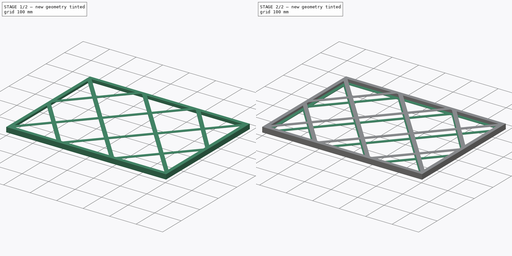
[diagram: build sequence overview — one tinted view per stage of 2, left to right]
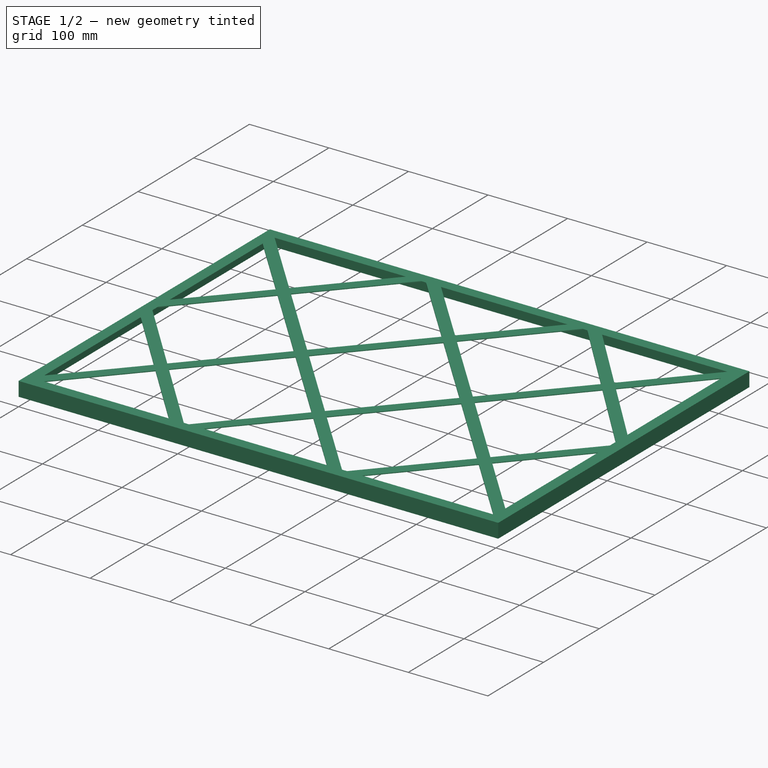
[diagram: stage 1 of 2 — iso view after this stage's code; geometry added in this stage tinted green]
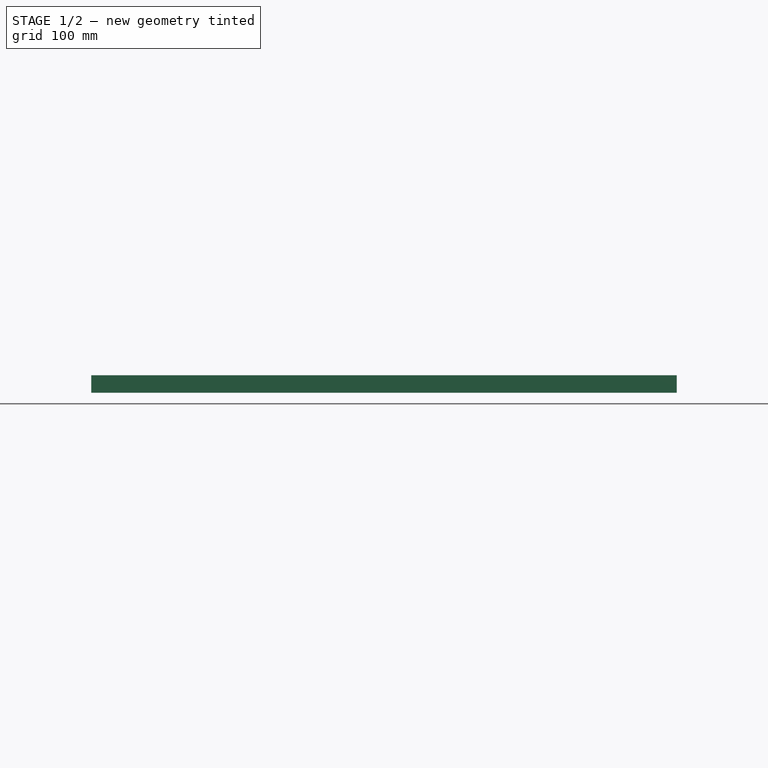
[diagram: stage 1 of 2 — front view after this stage's code; geometry added in this stage tinted green]
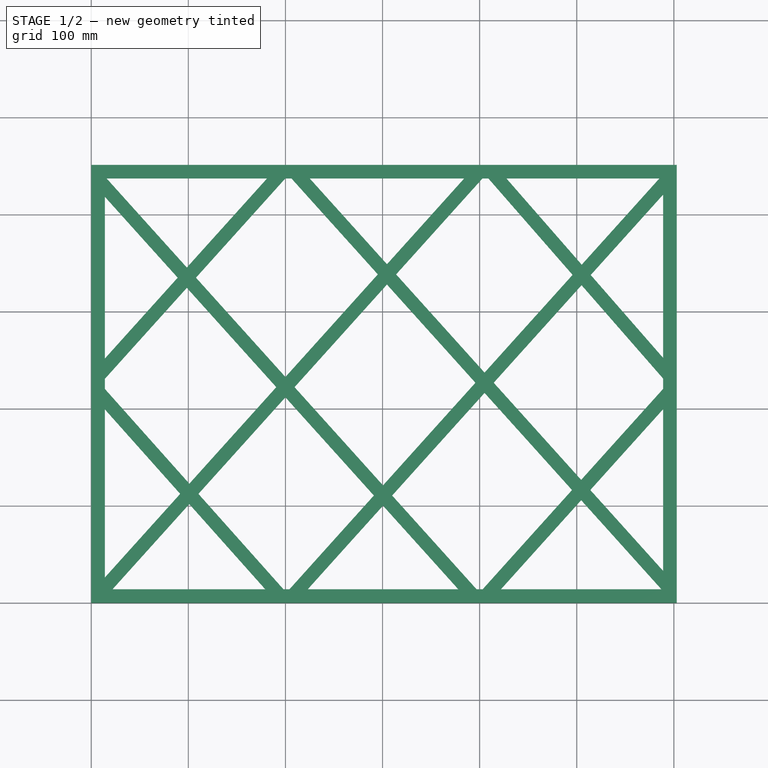
[diagram: stage 1 of 2 — top view after this stage's code; geometry added in this stage tinted green]
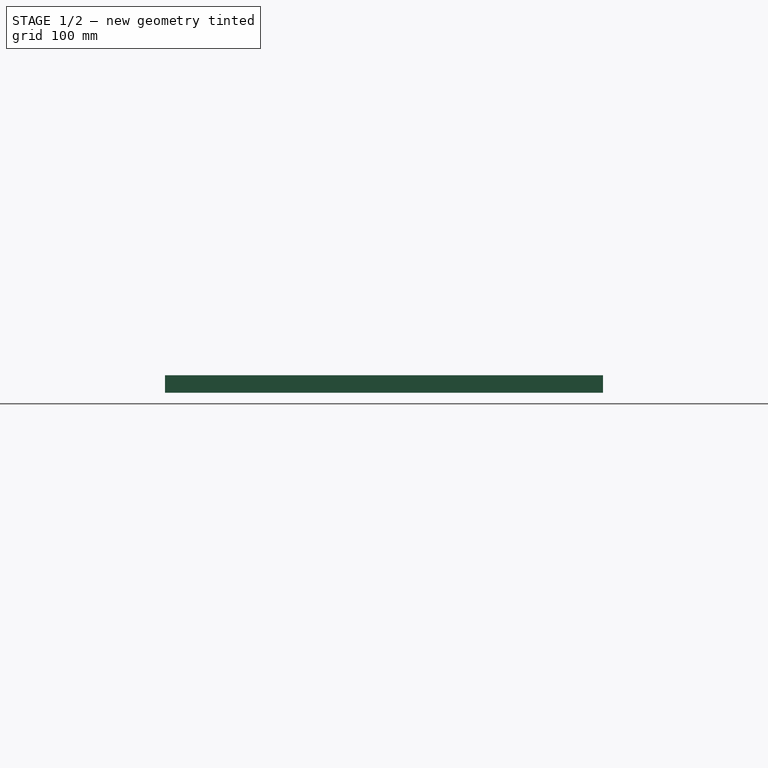
[diagram: stage 1 of 2 — right view after this stage's code; geometry added in this stage tinted green]
FCSTD DOCUMENT  (FreeCAD 1.0R39109 (Git))
Label: merv-13-filter-18-24in
License: All rights reserved
LicenseURL: https://en.wikipedia.org/wiki/All_rights_reserved
objects: Sketcher::SketchObject×2, PartDesign::Pad×2, PartDesign::LinearPattern×1, PartDesign::Body×1
note: 13 computed .brp shape members not serialized (recipe doc carries the construction recipe); baked Part::Feature solids carry a one-line shape summary decoded from their .brp

FEATURE [Sketcher::SketchObject] Sketch
  ArcFitTolerance = 1e-06
  AttachmentSupport = -> [XY_Plane]
  FullyConstrained = true
  MakeInternals = false
  MapMode = 5
  sketch-geometry (8):
    g0: LineSegment StartX=0 StartY=0 StartZ=0 EndX=603 EndY=0 EndZ=0
    g1: LineSegment StartX=603 StartY=0 StartZ=0 EndX=603 EndY=451 EndZ=0
    g2: LineSegment StartX=603 StartY=451 StartZ=0 EndX=0 EndY=451 EndZ=0
    g3: LineSegment StartX=0 StartY=451 StartZ=0 EndX=0 EndY=0 EndZ=0
    g4: LineSegment StartX=602 StartY=450 StartZ=0 EndX=1 EndY=450 EndZ=0
    g5: LineSegment StartX=1 StartY=450 StartZ=0 EndX=1 EndY=1 EndZ=0
    g6: LineSegment StartX=1 StartY=1 StartZ=0 EndX=602 EndY=1 EndZ=0
    g7: LineSegment StartX=602 StartY=1 StartZ=0 EndX=602 EndY=450 EndZ=0
  constraints (23):
    c: Coincident(g0,g1)
    c: Coincident(g1,g2)
    c: Coincident(g2,g3)
    c: Coincident(g3,g0)
    c: Horizontal(g0)
    c: Horizontal(g2)
    c: Vertical(g1)
    c: Vertical(g3)
    c: Distance(g1,g3) = 603
    c: Distance(g0,g2) = 451
    c: Coincident(g0,g-1)
    c: Coincident(g4,g5)
    c: Coincident(g5,g6)
    c: Coincident(g6,g7)
    c: Coincident(g7,g4)
    c: Horizontal(g4)
    c: Horizontal(g6)
    c: Vertical(g5)
    c: Vertical(g7)
    c: Distance(g3,g5) = 1
    c: Distance(g2,g4) = 1
    c: Distance(g1,g7) = 1
    c: Distance(g0,g6) = 1
FEATURE [PartDesign::Pad] Pad
  Direction = (0,0,1)
  Length = 17
  Length2 = 10
  Profile = -> Sketch
  ReferenceAxis = -> Sketch [N_Axis]
  Refine = true
  Suppressed = false
  Type = 0
FEATURE [Sketcher::SketchObject] Sketch001
  ArcFitTolerance = 1e-06
  AttachmentSupport = -> [Pad]
  FullyConstrained = false
  MakeInternals = false
  MapMode = 5
  Placement = pos=(0,0,17) rot=(0,0,1;0rad)
  sketch-geometry (68):
    g0: LineSegment StartX=0 StartY=0 StartZ=0 EndX=603 EndY=0 EndZ=0
    g1: LineSegment StartX=603 StartY=0 StartZ=0 EndX=603 EndY=451 EndZ=0
    g2: LineSegment StartX=603 StartY=451 StartZ=0 EndX=0 EndY=451 EndZ=0
    g3: LineSegment StartX=0 StartY=451 StartZ=0 EndX=0 EndY=0 EndZ=0
    g4: LineSegment StartX=22.0251 StartY=14 StartZ=0 EndX=179.144 EndY=14 EndZ=0
    g5: LineSegment StartX=589 StartY=32.8106 StartZ=0 EndX=589 EndY=199.49 EndZ=0
    g6: LineSegment StartX=585.057 StartY=437 StartZ=0 EndX=427.601 EndY=437 EndZ=0
    g7: LineSegment StartX=14 StartY=418.189 StartZ=0 EndX=14 EndY=251.51 EndZ=0
    g8: LineSegment StartX=15.9012 StartY=437 StartZ=0 EndX=98.4587 EndY=345.311 EndZ=0
    g9: LineSegment StartX=14 StartY=418.189 StartZ=0 EndX=89.0392 EndY=334.849 EndZ=0
    g10: LineSegment StartX=225.066 StartY=437 StartZ=0 EndX=304.562 EndY=348.711 EndZ=0
    g11: LineSegment StartX=199.855 StartY=437 StartZ=0 EndX=107.878 EndY=334.849 EndZ=0
    g12: LineSegment StartX=206.227 StartY=437 StartZ=0 EndX=295.142 EndY=338.25 EndZ=0
    g13: LineSegment StartX=181.016 StartY=437 StartZ=0 EndX=98.4587 EndY=345.311 EndZ=0
    g14: LineSegment StartX=427.601 StartY=437 StartZ=0 EndX=505.124 EndY=348.225 EndZ=0
    g15: LineSegment StartX=409.014 StartY=437 StartZ=0 EndX=495.688 EndY=337.746 EndZ=0
    g16: LineSegment StartX=384.057 StartY=437 StartZ=0 EndX=304.562 EndY=348.711 EndZ=0
    g17: LineSegment StartX=585.057 StartY=437 StartZ=0 EndX=505.124 EndY=348.225 EndZ=0
    g18: LineSegment StartX=589 StartY=220.413 StartZ=0 EndX=504.541 EndY=126.612 EndZ=0
    g19: LineSegment StartX=421.984 StartY=14 StartZ=0 EndX=504.541 EndY=105.689 EndZ=0
    g20: LineSegment StartX=223.025 StartY=14 StartZ=0 EndX=300.479 EndY=100.022 EndZ=0
    g21: LineSegment StartX=22.0251 StartY=14 StartZ=0 EndX=100.981 EndY=101.69 EndZ=0
    g22: LineSegment StartX=197.898 StartY=14 StartZ=0 EndX=204.186 EndY=14 EndZ=0
    g23: LineSegment StartX=223.025 StartY=14 StartZ=0 EndX=377.934 EndY=14 EndZ=0
    g24: LineSegment StartX=396.772 StartY=14 StartZ=0 EndX=403.145 EndY=14 EndZ=0
    g25: LineSegment StartX=421.984 StartY=14 StartZ=0 EndX=587.098 EndY=14 EndZ=0
    g26: LineSegment StartX=409.014 StartY=437 StartZ=0 EndX=402.896 EndY=437 EndZ=0
    g27: LineSegment StartX=384.057 StartY=437 StartZ=0 EndX=225.066 EndY=437 EndZ=0
    g28: LineSegment StartX=181.016 StartY=437 StartZ=0 EndX=15.9012 EndY=437 EndZ=0
    g29: LineSegment StartX=206.227 StartY=437 StartZ=0 EndX=199.855 EndY=437 EndZ=0
    g30: LineSegment StartX=14 StartY=220.314 StartZ=0 EndX=101.034 EndY=122.671 EndZ=0
    g31: LineSegment StartX=14 StartY=199.273 StartZ=0 EndX=91.6095 EndY=112.204 EndZ=0
    g32: LineSegment StartX=14 StartY=199.273 StartZ=0 EndX=14 EndY=26.0099 EndZ=0
    g33: LineSegment StartX=14 StartY=230.587 StartZ=0 EndX=14 EndY=220.314 EndZ=0
    g34: LineSegment StartX=89.0392 StartY=334.849 StartZ=0 EndX=14 EndY=251.51 EndZ=0
    g35: LineSegment StartX=98.4587 StartY=324.388 StartZ=0 EndX=190.56 EndY=222.099 EndZ=0
    g36: LineSegment StartX=98.4587 StartY=324.388 StartZ=0 EndX=14 EndY=230.587 EndZ=0
    g37: LineSegment StartX=107.878 StartY=334.849 StartZ=0 EndX=199.979 EndY=232.561 EndZ=0
    g38: LineSegment StartX=295.142 StartY=338.25 StartZ=0 EndX=199.979 EndY=232.561 EndZ=0
    g39: LineSegment StartX=304.562 StartY=327.789 StartZ=0 EndX=395.642 EndY=226.633 EndZ=0
    g40: LineSegment StartX=313.981 StartY=338.25 StartZ=0 EndX=402.896 EndY=437 EndZ=0
    g41: LineSegment StartX=313.981 StartY=338.25 StartZ=0 EndX=405.062 EndY=237.095 EndZ=0
    g42: LineSegment StartX=395.642 StartY=226.633 StartZ=0 EndX=300.479 EndY=120.944 EndZ=0
    g43: LineSegment StartX=405.062 StartY=216.172 StartZ=0 EndX=495.122 EndY=116.15 EndZ=0
    g44: LineSegment StartX=414.481 StartY=226.633 StartZ=0 EndX=504.963 EndY=327.124 EndZ=0
    g45: LineSegment StartX=414.481 StartY=226.633 StartZ=0 EndX=504.541 EndY=126.612 EndZ=0
    g46: LineSegment StartX=504.541 StartY=105.689 StartZ=0 EndX=587.098 EndY=14 EndZ=0
    g47: LineSegment StartX=495.122 StartY=116.15 StartZ=0 EndX=403.145 EndY=14 EndZ=0
    g48: LineSegment StartX=513.96 StartY=116.15 StartZ=0 EndX=589 EndY=32.8106 EndZ=0
    g49: LineSegment StartX=513.96 StartY=116.15 StartZ=0 EndX=589 EndY=199.49 EndZ=0
    g50: LineSegment StartX=495.688 StartY=337.746 StartZ=0 EndX=405.062 EndY=237.095 EndZ=0
    g51: LineSegment StartX=504.963 StartY=327.124 StartZ=0 EndX=589 EndY=230.89 EndZ=0
    g52: LineSegment StartX=514.399 StartY=337.603 StartZ=0 EndX=589 EndY=252.174 EndZ=0
    g53: LineSegment StartX=514.399 StartY=337.603 StartZ=0 EndX=589 EndY=420.456 EndZ=0
    g54: LineSegment StartX=91.6095 StartY=112.204 StartZ=0 EndX=14 EndY=26.0099 EndZ=0
    g55: LineSegment StartX=100.981 StartY=101.69 StartZ=0 EndX=179.144 EndY=14 EndZ=0
    g56: LineSegment StartX=110.406 StartY=112.157 StartZ=0 EndX=199.979 EndY=211.638 EndZ=0
    g57: LineSegment StartX=110.406 StartY=112.157 StartZ=0 EndX=197.898 EndY=14 EndZ=0
    g58: LineSegment StartX=190.56 StartY=222.099 StartZ=0 EndX=101.034 EndY=122.671 EndZ=0
    g59: LineSegment StartX=209.399 StartY=222.099 StartZ=0 EndX=304.562 EndY=327.789 EndZ=0
    g60: LineSegment StartX=209.399 StartY=222.099 StartZ=0 EndX=300.479 EndY=120.944 EndZ=0
    g61: LineSegment StartX=199.979 StartY=211.638 StartZ=0 EndX=291.06 EndY=110.483 EndZ=0
    g62: LineSegment StartX=300.479 StartY=100.022 StartZ=0 EndX=377.934 EndY=14 EndZ=0
    g63: LineSegment StartX=291.06 StartY=110.483 StartZ=0 EndX=204.186 EndY=14 EndZ=0
    g64: LineSegment StartX=309.899 StartY=110.483 StartZ=0 EndX=396.772 EndY=14 EndZ=0
    g65: LineSegment StartX=309.899 StartY=110.483 StartZ=0 EndX=405.062 EndY=216.172 EndZ=0
    g66: LineSegment StartX=589 StartY=220.413 StartZ=0 EndX=589 EndY=230.89 EndZ=0
    g67: LineSegment StartX=589 StartY=252.174 StartZ=0 EndX=589 EndY=420.456 EndZ=0
  constraints (106):
    c: Coincident(g0,g1)
    c: Coincident(g1,g2)
    c: Coincident(g2,g3)
    c: Coincident(g3,g0)
    c: Horizontal(g0)
    c: Horizontal(g2)
    c: Vertical(g1)
    c: Vertical(g3)
    c: Distance(g1,g3) = 603
    c: Distance(g0,g2) = 451
    c: Horizontal(g4)
    c: Horizontal(g6)
    c: Vertical(g5)
    c: Vertical(g7)
    c: Distance(g2,g6) = 14
    c: Distance(g1,g5) = 14
    c: Distance(g0,g4) = 14
    c: Distance(g-1,g7) = 14
    c: PointOnObject(g13,g28)
    c: PointOnObject(g12,g29)
    c: PointOnObject(g15,g26)
    c: PointOnObject(g16,g27)
    c: PointOnObject(g18,g66)
    c: PointOnObject(g52,g67)
    c: PointOnObject(g19,g25)
    c: PointOnObject(g64,g24)
    c: PointOnObject(g57,g22)
    c: Coincident(g32,g54)
    c: Coincident(g4,g21)
    c: Coincident(g4,g55)
    c: PointOnObject(g22,g57)
    c: Coincident(g22,g63)
    c: Coincident(g23,g20)
    c: Coincident(g23,g62)
    c: PointOnObject(g24,g64)
    c: PointOnObject(g25,g19)
    c: Coincident(g24,g47)
    c: Coincident(g25,g46)
    c: Coincident(g5,g48)
    c: Block(g19)
    c: Block(g14)
    c: Block(g15)
    c: Coincident(g67,g53)
    c: Coincident(g6,g17)
    c: PointOnObject(g26,g15)
    c: Coincident(g6,g14)
    c: PointOnObject(g27,g16)
    c: Coincident(g26,g40)
    c: PointOnObject(g28,g13)
    c: Coincident(g29,g11)
    c: PointOnObject(g29,g12)
    c: Coincident(g27,g10)
    c: Coincident(g7,g9)
    c: Coincident(g28,g8)
    c: PointOnObject(g36,g33)
    c: Coincident(g33,g30)
    c: Coincident(g32,g31)
    c: Coincident(g7,g34)
    c: PointOnObject(g33,g36)
    c: Coincident(g9,g34)
    c: PointOnObject(g35,g36)
    c: PointOnObject(g36,g35)
    c: PointOnObject(g11,g37)
    c: Coincident(g8,g13)
    c: PointOnObject(g37,g11)
    c: Coincident(g38,g12)
    c: PointOnObject(g40,g41)
    c: Coincident(g59,g39)
    c: Coincident(g10,g16)
    c: PointOnObject(g41,g40)
    c: PointOnObject(g44,g45)
    c: Coincident(g65,g43)
    c: PointOnObject(g45,g44)
    c: Coincident(g41,g50)
    c: Coincident(g42,g39)
    c: PointOnObject(g43,g47)
    c: PointOnObject(g47,g43)
    c: Coincident(g45,g18)
    c: PointOnObject(g48,g49)
    c: Coincident(g19,g46)
    c: PointOnObject(g49,g48)
    c: Coincident(g15,g50)
    c: Coincident(g14,g17)
    c: PointOnObject(g52,g53)
    c: PointOnObject(g53,g52)
    c: Coincident(g44,g51)
    c: Coincident(g31,g54)
    c: Coincident(g21,g55)
    c: PointOnObject(g56,g57)
    c: PointOnObject(g57,g56)
    c: Coincident(g30,g58)
    c: PointOnObject(g59,g60)
    c: PointOnObject(g56,g61)
    c: Coincident(g37,g38)
    c: PointOnObject(g60,g59)
    c: Coincident(g35,g58)
    c: PointOnObject(g61,g56)
    c: Coincident(g61,g63)
    c: Coincident(g60,g42)
    c: PointOnObject(g64,g65)
    c: Coincident(g20,g62)
    c: PointOnObject(g65,g64)
    c: Coincident(g5,g49)
    c: PointOnObject(g66,g18)
    c: Coincident(g66,g51)
    c: PointOnObject(g67,g52)
FEATURE [PartDesign::Pad] Pad001
  BaseFeature = -> Pad
  Direction = (0,0,1)
  Length = 1
  Length2 = 10
  Profile = -> Sketch001
  ReferenceAxis = -> Sketch001 [N_Axis]
  Refine = true
  Suppressed = false
  Type = 0
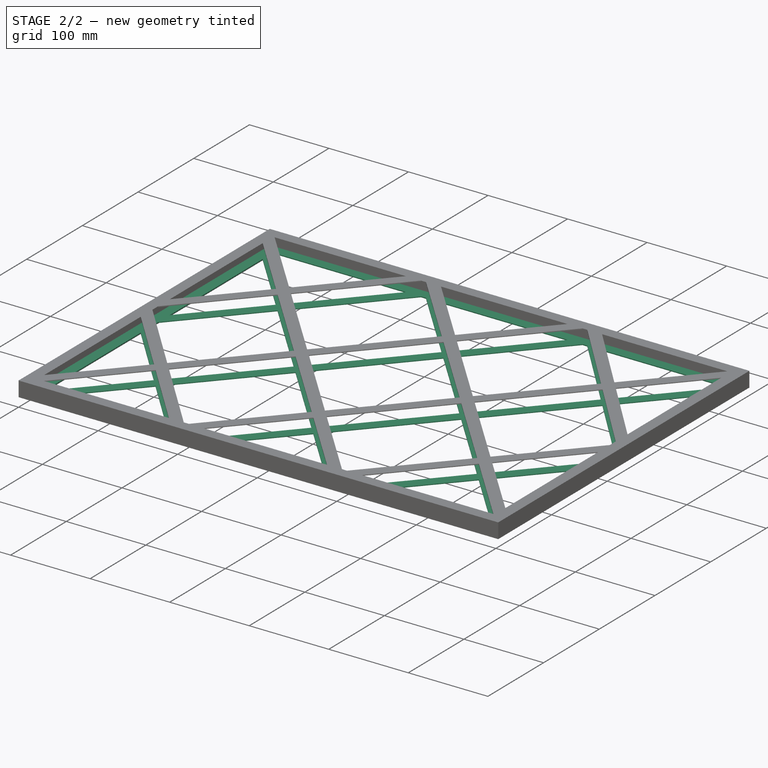
[diagram: stage 2 of 2 — iso view after this stage's code; geometry added in this stage tinted green]
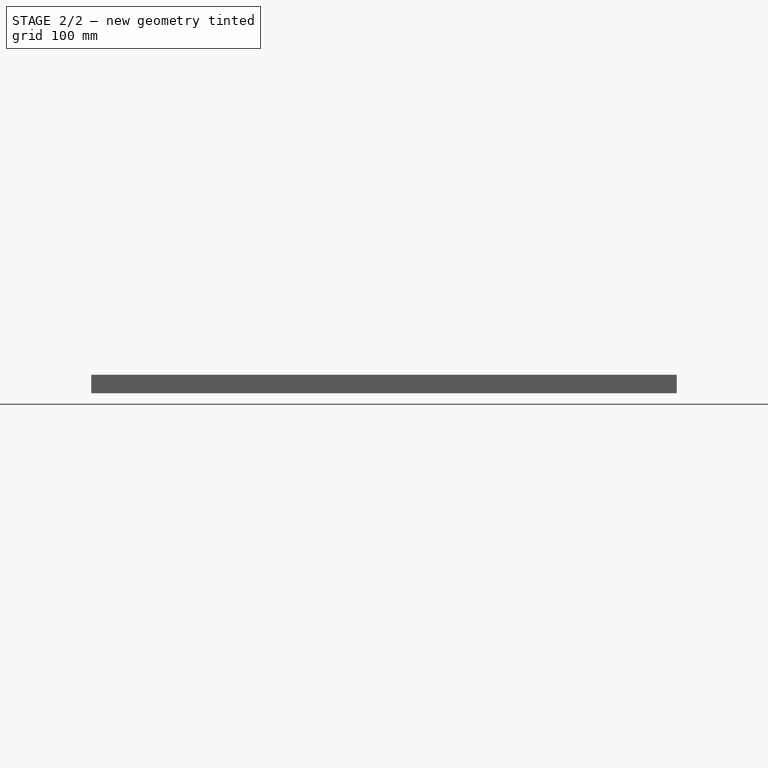
[diagram: stage 2 of 2 — front view after this stage's code; geometry added in this stage tinted green]
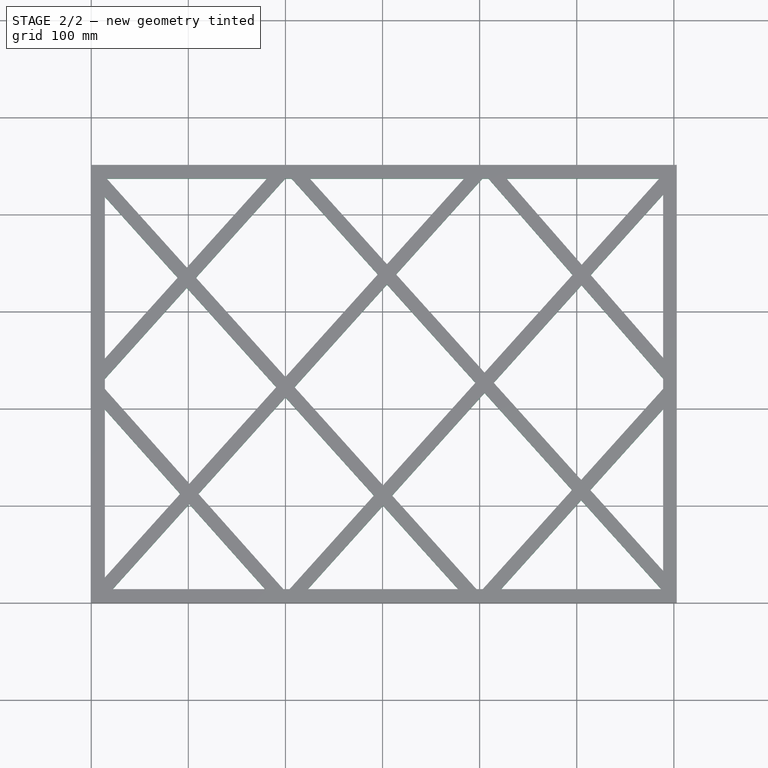
[diagram: stage 2 of 2 — top view after this stage's code; geometry added in this stage tinted green]
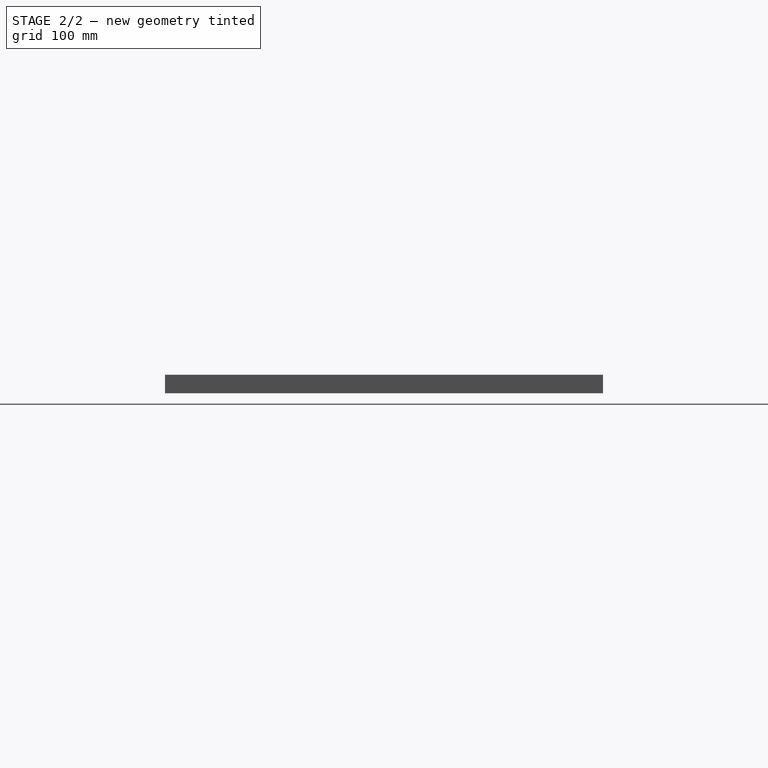
[diagram: stage 2 of 2 — right view after this stage's code; geometry added in this stage tinted green]
FEATURE [PartDesign::LinearPattern] LinearPattern
  BaseFeature = -> Pad001
  Direction = -> Z_Axis
  Length = 18
  Mode = 0
  Occurrences = 2
  Offset = 18
  Originals = -> [Pad001]
  Refine = true
  Reversed = true
  Suppressed = false
  TransformMode = 0
FEATURE [PartDesign::Body] Body  label="merv-13-filter-18x24in"
  AllowCompound = false
  Group = -> [Sketch,Pad,Sketch001,Pad001,LinearPattern]
  Origin = -> Origin
  Tip = -> LinearPattern
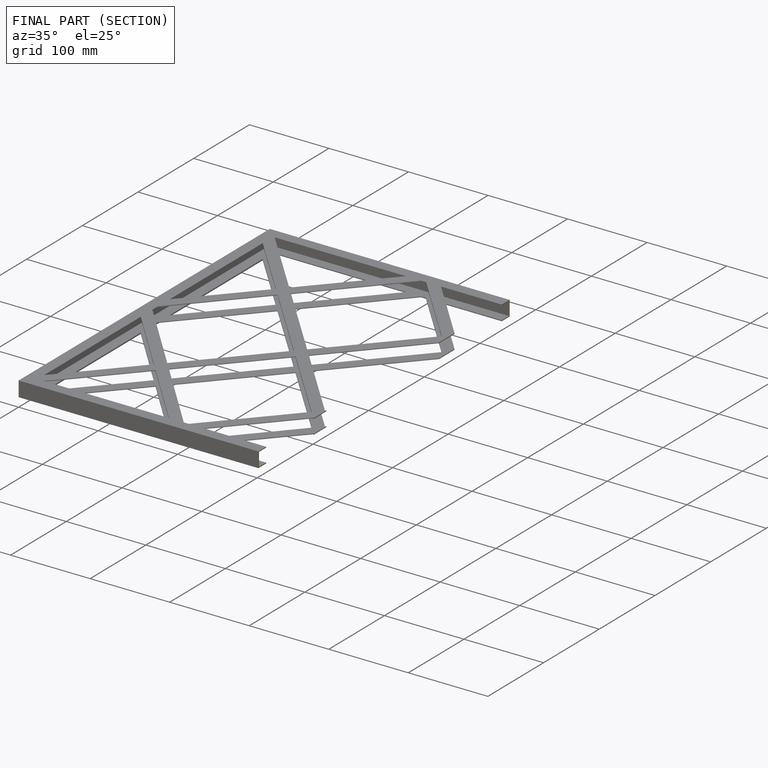
[diagram: finished part — half-section view (interior)]
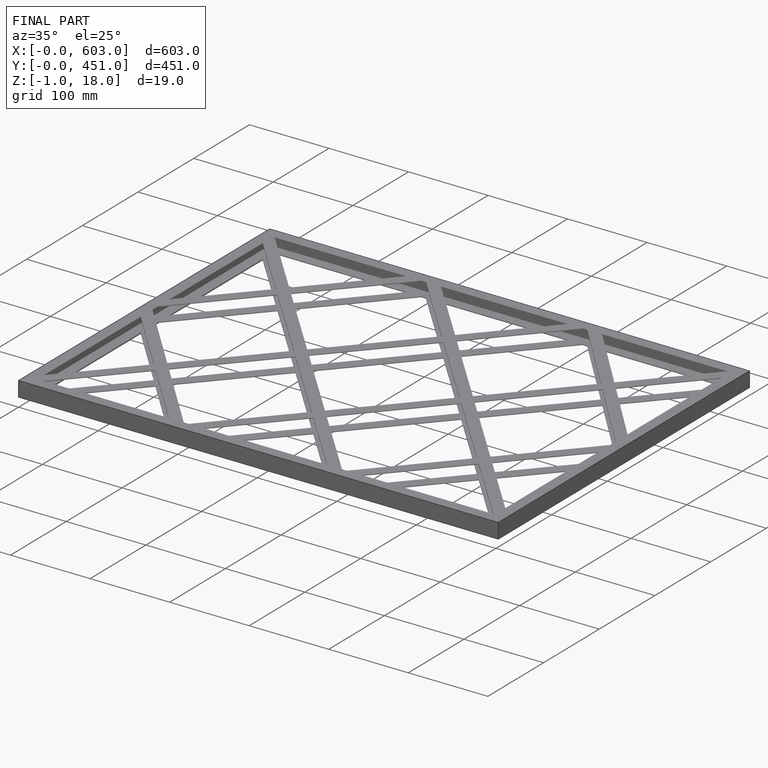
[diagram: finished part — iso view with bounding-box wireframe]
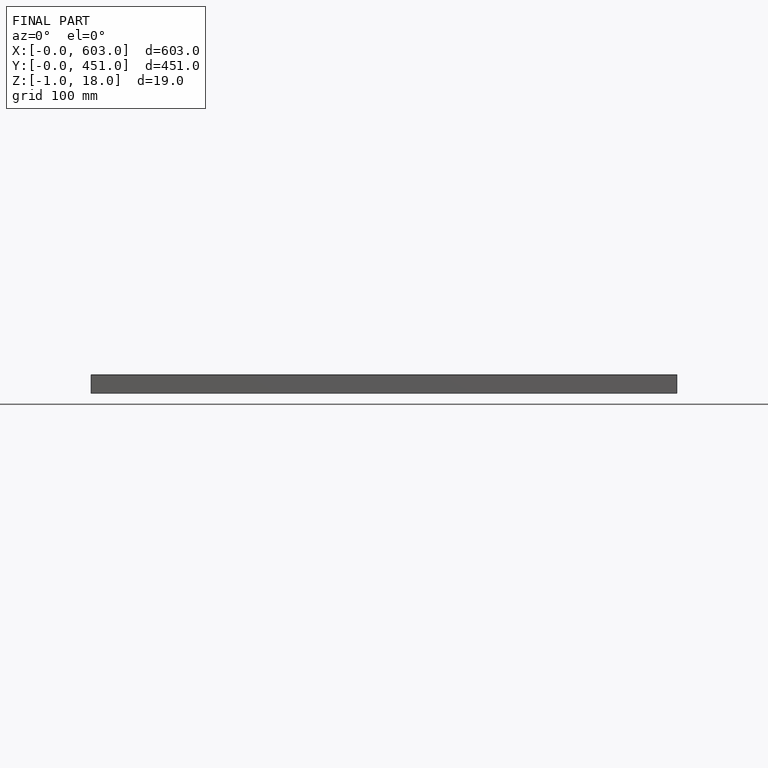
[diagram: finished part — front view with bounding-box wireframe]
